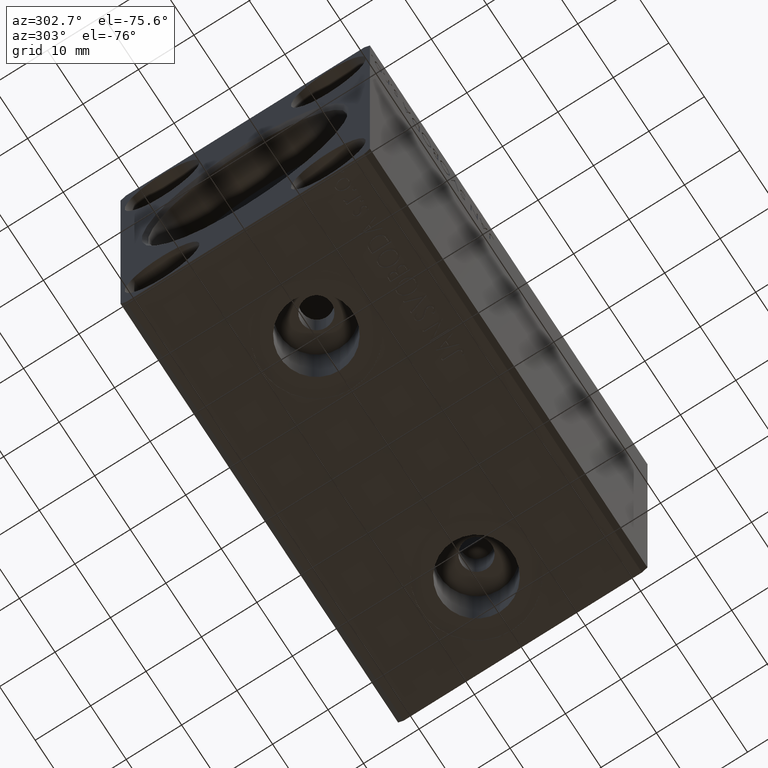
[diagram: clean part render]
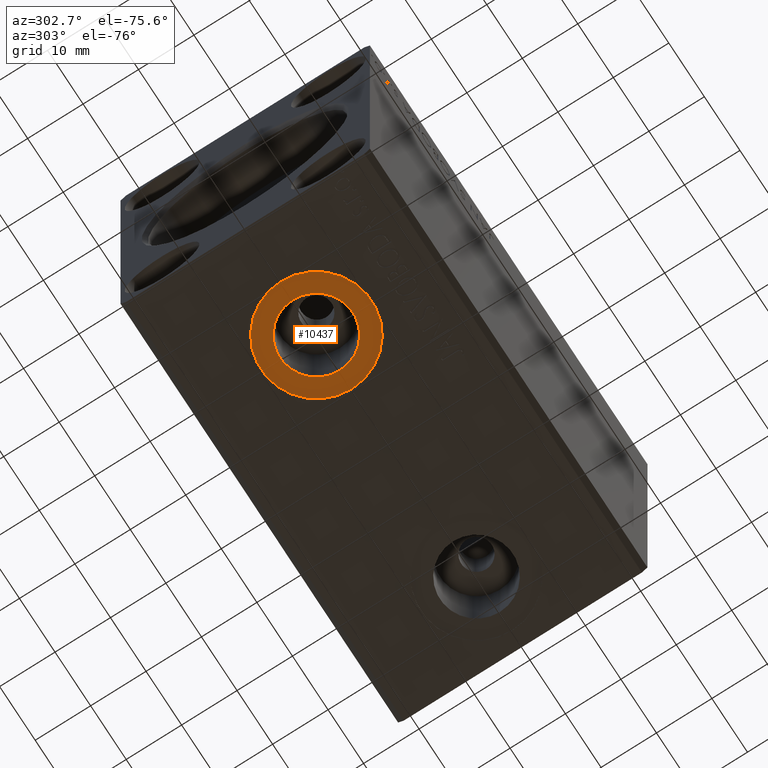
[diagram: same view with one face highlighted and labeled with its STEP entity id]
A machine part, auxiliary view. The second image highlights one B-rep face of the part: STEP entity #10437.
In plain terms, the highlighted planar face has unit normal (0, 0, -1).
Its self-contained STEP definition (entity closure, byte-faithful):
#1131 = CARTESIAN_POINT ( 'NONE',  ( 19.99999999999999645, 2.578758962896938545E-15, -32.39999999999999858 ) ) ;
#3405 = PLANE ( 'NONE',  #13032 ) ;
#3766 = CIRCLE ( 'NONE', #16843, 6.580000000000002736 ) ;
#4015 = CARTESIAN_POINT ( 'NONE',  ( 19.99999999999999645, 2.578758962896938545E-15, -32.39999999999999858 ) ) ;
#4774 = ORIENTED_EDGE ( 'NONE', *, *, #25334, .T. ) ;
#4786 = DIRECTION ( 'NONE',  ( 0.000000000000000000, 0.000000000000000000, -1.000000000000000000 ) ) ;
#5430 = EDGE_LOOP ( 'NONE', ( #12927, #16997 ) ) ;
#5849 = VERTEX_POINT ( 'NONE', #21308 ) ;
#6284 = DIRECTION ( 'NONE',  ( -1.000000000000000000, 0.000000000000000000, 0.000000000000000000 ) ) ;
#8956 = CARTESIAN_POINT ( 'NONE',  ( 26.57999999999999829, 3.384576556735897587E-15, -32.39999999999999858 ) ) ;
#9809 = DIRECTION ( 'NONE',  ( 0.000000000000000000, 0.000000000000000000, -1.000000000000000000 ) ) ;
#10437 = ADVANCED_FACE ( 'NONE', ( #33341, #23431 ), #3405, .T. ) ;
#11170 = ORIENTED_EDGE ( 'NONE', *, *, #33620, .T. ) ;
#12088 = CIRCLE ( 'NONE', #27205, 10.00000000000000000 ) ;
#12195 = VERTEX_POINT ( 'NONE', #19441 ) ;
#12927 = ORIENTED_EDGE ( 'NONE', *, *, #31073, .F. ) ;
#13032 = AXIS2_PLACEMENT_3D ( 'NONE', #36781, #17198, #36566 ) ;
#14345 = VERTEX_POINT ( 'NONE', #8956 ) ;
#15774 = EDGE_CURVE ( 'NONE', #14345, #5849, #31036, .T. ) ;
#16843 = AXIS2_PLACEMENT_3D ( 'NONE', #32852, #9809, #25774 ) ;
#16997 = ORIENTED_EDGE ( 'NONE', *, *, #15774, .F. ) ;
#17198 = DIRECTION ( 'NONE',  ( 0.000000000000000000, 0.000000000000000000, -1.000000000000000000 ) ) ;
#19441 = CARTESIAN_POINT ( 'NONE',  ( 9.999999999999996447, 2.578758962896938545E-15, -32.39999999999999858 ) ) ;
#20958 = DIRECTION ( 'NONE',  ( -1.000000000000000000, 0.000000000000000000, 0.000000000000000000 ) ) ;
#21308 = CARTESIAN_POINT ( 'NONE',  ( 13.41999999999999460, 2.578758962896938545E-15, -32.39999999999999858 ) ) ;
#21869 = CARTESIAN_POINT ( 'NONE',  ( 30.00000000000000000, 3.803405762044291999E-15, -32.39999999999999858 ) ) ;
#22042 = EDGE_LOOP ( 'NONE', ( #4774, #11170 ) ) ;
#22654 = DIRECTION ( 'NONE',  ( 0.000000000000000000, 0.000000000000000000, -1.000000000000000000 ) ) ;
#23431 = FACE_OUTER_BOUND ( 'NONE', #22042, .T. ) ;
#25334 = EDGE_CURVE ( 'NONE', #12195, #25894, #41570, .T. ) ;
#25774 = DIRECTION ( 'NONE',  ( -1.000000000000000000, 0.000000000000000000, 0.000000000000000000 ) ) ;
#25889 = CARTESIAN_POINT ( 'NONE',  ( 19.99999999999999645, 2.578758962896938545E-15, -32.39999999999999858 ) ) ;
#25894 = VERTEX_POINT ( 'NONE', #21869 ) ;
#27205 = AXIS2_PLACEMENT_3D ( 'NONE', #4015, #40627, #40189 ) ;
#31036 = CIRCLE ( 'NONE', #32401, 6.580000000000002736 ) ;
#31073 = EDGE_CURVE ( 'NONE', #5849, #14345, #3766, .T. ) ;
#32401 = AXIS2_PLACEMENT_3D ( 'NONE', #1131, #4786, #20958 ) ;
#32852 = CARTESIAN_POINT ( 'NONE',  ( 19.99999999999999645, 2.578758962896938545E-15, -32.39999999999999858 ) ) ;
#33341 = FACE_BOUND ( 'NONE', #5430, .T. ) ;
#33620 = EDGE_CURVE ( 'NONE', #25894, #12195, #12088, .T. ) ;
#34681 = AXIS2_PLACEMENT_3D ( 'NONE', #25889, #22654, #6284 ) ;
#36566 = DIRECTION ( 'NONE',  ( -1.000000000000000000, 0.000000000000000000, -0.000000000000000000 ) ) ;
#36781 = CARTESIAN_POINT ( 'NONE',  ( 0.000000000000000000, 0.000000000000000000, -32.39999999999999858 ) ) ;
#40189 = DIRECTION ( 'NONE',  ( -1.000000000000000000, 0.000000000000000000, 0.000000000000000000 ) ) ;
#40627 = DIRECTION ( 'NONE',  ( 0.000000000000000000, 0.000000000000000000, -1.000000000000000000 ) ) ;
#41570 = CIRCLE ( 'NONE', #34681, 10.00000000000000000 ) ;